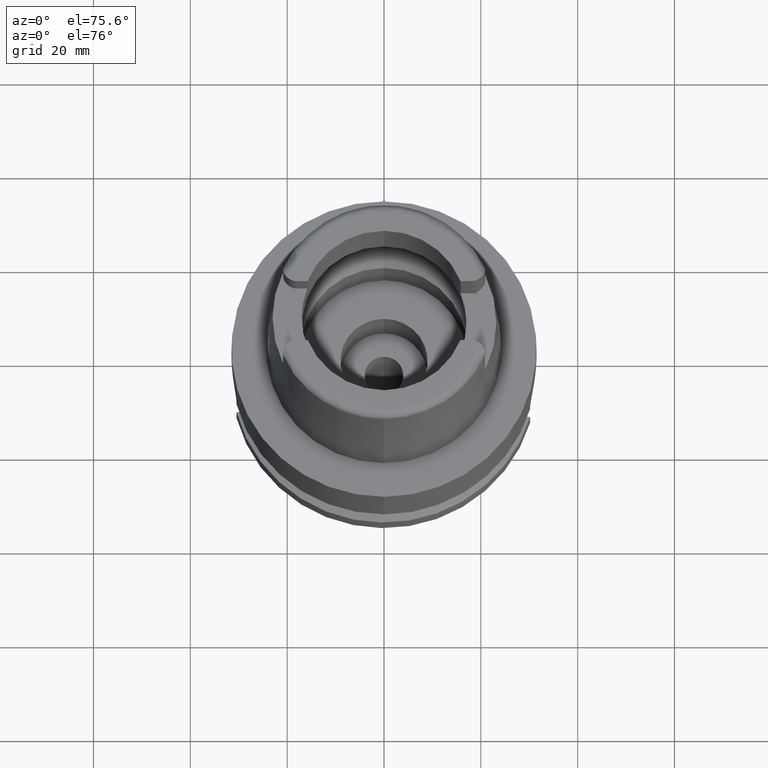
[diagram: clean part render]
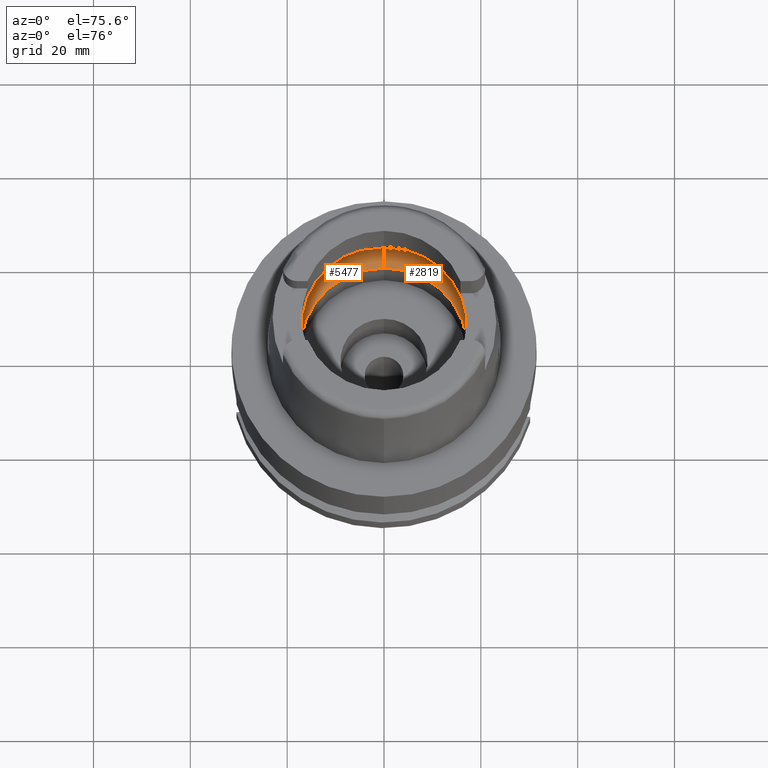
[diagram: same view with one multi-face feature highlighted, each face labeled with its STEP entity id]
A machine part, auxiliary view. The highlighted faces form ONE feature: a constant-radius fillet chain: 2 tangent blend faces with common blend radius 8 mm. The faces share edges in the B-rep.
Their STEP definitions:
[1] entity #5477 (Torus):
#79 = CARTESIAN_POINT ( 'NONE',  ( -19.84575864665999845, 2.479085262489999941, 6.186348233825000875 ) ) ;
#109 = TOROIDAL_SURFACE ( 'NONE', #1642, 12.00000000000000000, 8.000000000000000000 ) ;
#124 = DIRECTION ( 'NONE',  ( 0.0000000000000000000, 0.0000000000000000000, 1.000000000000000000 ) ) ;
#199 = CARTESIAN_POINT ( 'NONE',  ( 0.0000000000000000000, -17.25000000000000000, 0.1500000000000999700 ) ) ;
#255 = CARTESIAN_POINT ( 'NONE',  ( -19.92208494194046509, -1.430041077684033990, 5.533135808937241329 ) ) ;
#269 = CARTESIAN_POINT ( 'NONE',  ( -19.84575864665999845, -2.479085262491000030, 6.186348233825000875 ) ) ;
#373 = CARTESIAN_POINT ( 'NONE',  ( -19.84575864665999845, 2.479085262489999941, 6.186348233825000875 ) ) ;
#375 = DIRECTION ( 'NONE',  ( 0.0000000000000000000, 0.0000000000000000000, 1.000000000000000000 ) ) ;
#425 = CARTESIAN_POINT ( 'NONE',  ( 0.0000000000000000000, 0.0000000000000000000, 6.186348233825000875 ) ) ;
#637 = DIRECTION ( 'NONE',  ( 1.000000000000000000, 0.0000000000000000000, 0.0000000000000000000 ) ) ;
#639 = CARTESIAN_POINT ( 'NONE',  ( -19.92547007504345302, -1.335031240339097369, 5.495683724100088874 ) ) ;
#723 = EDGE_LOOP ( 'NONE', ( #1511, #734, #5533, #2850, #3343, #3562, #4191 ) ) ;
#729 = CARTESIAN_POINT ( 'NONE',  ( -19.92517785718085577, -1.343613127942956842, 5.498962406970089312 ) ) ;
#734 = ORIENTED_EDGE ( 'NONE', *, *, #1108, .F. ) ;
#760 = CARTESIAN_POINT ( 'NONE',  ( -19.84575864665999845, -2.479085262491000030, 6.186348233825000875 ) ) ;
#786 = DIRECTION ( 'NONE',  ( -1.000000000000000000, 0.0000000000000000000, 0.0000000000000000000 ) ) ;
#982 = VERTEX_POINT ( 'NONE', #199 ) ;
#1011 = AXIS2_PLACEMENT_3D ( 'NONE', #2968, #375, #5552 ) ;
#1063 = CARTESIAN_POINT ( 'NONE',  ( -19.93655184384261858, 0.9261166967963114782, 5.364558725656097593 ) ) ;
#1067 = DIRECTION ( 'NONE',  ( 0.0000000000000000000, 1.000000000000000000, 0.0000000000000000000 ) ) ;
#1089 = EDGE_CURVE ( 'NONE', #5266, #2336, #1790, .T. ) ;
#1108 = EDGE_CURVE ( 'NONE', #982, #1769, #4692, .T. ) ;
#1138 = DIRECTION ( 'NONE',  ( -0.9922879323327794543, 0.1239542631244973381, 0.0000000000000000000 ) ) ;
#1150 = CARTESIAN_POINT ( 'NONE',  ( -19.92840422587602944, 1.244362650384072122, 5.462311864171463860 ) ) ;
#1187 = AXIS2_PLACEMENT_3D ( 'NONE', #2457, #637, #4203 ) ;
#1417 = AXIS2_PLACEMENT_3D ( 'NONE', #5397, #3255, #1138 ) ;
#1511 = ORIENTED_EDGE ( 'NONE', *, *, #3593, .F. ) ;
#1557 = CARTESIAN_POINT ( 'NONE',  ( -19.94501428475999916, 0.0000000000000000000, 5.250000000000000000 ) ) ;
#1642 = AXIS2_PLACEMENT_3D ( 'NONE', #4837, #124, #1067 ) ;
#1669 = CARTESIAN_POINT ( 'NONE',  ( 0.0000000000000000000, 20.00000000000000000, 6.186348233825000875 ) ) ;
#1676 = VERTEX_POINT ( 'NONE', #269 ) ;
#1724 = CARTESIAN_POINT ( 'NONE',  ( -19.92607296192538513, 1.317057065037986030, 5.488888788417265907 ) ) ;
#1769 = VERTEX_POINT ( 'NONE', #5538 ) ;
#1790 = B_SPLINE_CURVE_WITH_KNOTS ( 'NONE', 3,
 ( #1557, #4910, #3272, #4992, #1063, #2763, #3299, #1150, #3382, #2937, #1724, #2965, #5049, #5463, #373 ),
 .UNSPECIFIED., .F., .F.,
 ( 4, 2, 2, 1, 1, 1, 2, 2, 4 ),
 ( 0.0000000000000000000, 0.2499999999999956146, 0.3749999999999934497, 0.4374999999999923395, 0.4687499999999917288, 0.4843749999999914513, 0.4921874999999914513, 0.4999999999999915623, 1.000000000000000000 ),
 .UNSPECIFIED. ) ;
#1840 = FACE_OUTER_BOUND ( 'NONE', #723, .T. ) ;
#1952 = CIRCLE ( 'NONE', #1417, 20.00000000000001421 ) ;
#2108 = B_SPLINE_CURVE_WITH_KNOTS ( 'NONE', 3,
 ( #760, #5353, #2371, #2849, #2767, #3622, #4594, #255, #4568, #4942, #729, #639, #2430, #2883, #4513 ),
 .UNSPECIFIED., .F., .F.,
 ( 4, 2, 2, 1, 1, 1, 2, 2, 4 ),
 ( 0.0000000000000000000, 0.2500000000000051070, 0.3750000000000077716, 0.4375000000000091038, 0.4687500000000098255, 0.4843750000000101030, 0.4921875000000099920, 0.5000000000000098810, 1.000000000000000000 ),
 .UNSPECIFIED. ) ;
#2336 = VERTEX_POINT ( 'NONE', #79 ) ;
#2339 = CIRCLE ( 'NONE', #1011, 17.25000000000000000 ) ;
#2371 = CARTESIAN_POINT ( 'NONE',  ( -19.88058961472209774, -2.158414018199903417, 5.925204145833316893 ) ) ;
#2426 = CIRCLE ( 'NONE', #1187, 7.999999999999992895 ) ;
#2430 = CARTESIAN_POINT ( 'NONE',  ( -19.93856671042052398, -0.9459665778997381480, 5.348222674928019060 ) ) ;
#2457 = CARTESIAN_POINT ( 'NONE',  ( 0.0000000000000000000, 12.00000000000000000, 6.186348233825000875 ) ) ;
#2533 = CARTESIAN_POINT ( 'NONE',  ( 0.0000000000000000000, -12.00000000000000000, 6.186348233825000875 ) ) ;
#2621 = CARTESIAN_POINT ( 'NONE',  ( 0.0000000000000000000, 17.25000000000000000, 0.1500000000000999700 ) ) ;
#2763 = CARTESIAN_POINT ( 'NONE',  ( -19.93292508344945801, 1.081630659659294169, 5.408972087979956989 ) ) ;
#2767 = CARTESIAN_POINT ( 'NONE',  ( -19.90654447560747542, -1.770008974173177263, 5.691881888190377659 ) ) ;
#2774 = CARTESIAN_POINT ( 'NONE',  ( -19.94501428475999916, 0.0000000000000000000, 5.250000000000000000 ) ) ;
#2849 = CARTESIAN_POINT ( 'NONE',  ( -19.90056784349247820, -1.871074272730828048, 5.748194928871746434 ) ) ;
#2850 = ORIENTED_EDGE ( 'NONE', *, *, #3492, .T. ) ;
#2883 = CARTESIAN_POINT ( 'NONE',  ( -19.94501428475999560, -0.4960423020627297008, 5.249999999999995559 ) ) ;
#2932 = EDGE_CURVE ( 'NONE', #2336, #3541, #1952, .T. ) ;
#2937 = CARTESIAN_POINT ( 'NONE',  ( -19.92646963884338263, 1.305022040076338818, 5.484397814373272340 ) ) ;
#2965 = CARTESIAN_POINT ( 'NONE',  ( -19.92591704426989452, 1.321751840890049490, 5.490650643677390974 ) ) ;
#2968 = CARTESIAN_POINT ( 'NONE',  ( 0.0000000000000000000, 0.0000000000000000000, 0.1500000000000999700 ) ) ;
#3255 = DIRECTION ( 'NONE',  ( 0.0000000000000000000, 0.0000000000000000000, -1.000000000000000000 ) ) ;
#3272 = CARTESIAN_POINT ( 'NONE',  ( -19.94340239125193293, 0.4850157974226460000, 5.274610163457148282 ) ) ;
#3299 = CARTESIAN_POINT ( 'NONE',  ( -19.93096058823649130, 1.157935579649966629, 5.432577573767241041 ) ) ;
#3343 = ORIENTED_EDGE ( 'NONE', *, *, #2932, .F. ) ;
#3382 = CARTESIAN_POINT ( 'NONE',  ( -19.92705993187612989, 1.286922590644232978, 5.477696685208107930 ) ) ;
#3492 = EDGE_CURVE ( 'NONE', #3778, #3541, #2426, .T. ) ;
#3541 = VERTEX_POINT ( 'NONE', #1669 ) ;
#3562 = ORIENTED_EDGE ( 'NONE', *, *, #1089, .F. ) ;
#3593 = EDGE_CURVE ( 'NONE', #1769, #1676, #4070, .T. ) ;
#3622 = CARTESIAN_POINT ( 'NONE',  ( -19.91448525756728927, -1.610510976265786987, 5.612925495665686881 ) ) ;
#3668 = EDGE_CURVE ( 'NONE', #3778, #982, #2339, .T. ) ;
#3778 = VERTEX_POINT ( 'NONE', #2621 ) ;
#3976 = AXIS2_PLACEMENT_3D ( 'NONE', #425, #5086, #4287 ) ;
#4070 = CIRCLE ( 'NONE', #3976, 20.00000000000000000 ) ;
#4191 = ORIENTED_EDGE ( 'NONE', *, *, #4555, .F. ) ;
#4203 = DIRECTION ( 'NONE',  ( 0.0000000000000000000, 0.6562500000000006661, -0.7545435292281016393 ) ) ;
#4230 = DIRECTION ( 'NONE',  ( 0.0000000000000000000, -0.6562500000000006661, -0.7545435292281016393 ) ) ;
#4287 = DIRECTION ( 'NONE',  ( 0.0000000000000000000, -1.000000000000000000, 0.0000000000000000000 ) ) ;
#4513 = CARTESIAN_POINT ( 'NONE',  ( -19.94501428475999916, 0.0000000000000000000, 5.250000000000000000 ) ) ;
#4555 = EDGE_CURVE ( 'NONE', #1676, #5266, #2108, .T. ) ;
#4568 = CARTESIAN_POINT ( 'NONE',  ( -19.92391559123418787, -1.379822842001579009, 5.513022806674898746 ) ) ;
#4594 = CARTESIAN_POINT ( 'NONE',  ( -19.91819960699401193, -1.528790138807751164, 5.574827418276589341 ) ) ;
#4692 = CIRCLE ( 'NONE', #5303, 7.999999999999992895 ) ;
#4837 = CARTESIAN_POINT ( 'NONE',  ( 0.0000000000000000000, 0.0000000000000000000, 6.186348233825000875 ) ) ;
#4910 = CARTESIAN_POINT ( 'NONE',  ( -19.94501428476000271, 0.2480002814738951344, 5.249999999999999112 ) ) ;
#4942 = CARTESIAN_POINT ( 'NONE',  ( -19.92467615132159864, -1.358120919786871328, 5.504564686247708671 ) ) ;
#4992 = CARTESIAN_POINT ( 'NONE',  ( -19.93856671072771292, 0.8185607198028845843, 5.338678409714962214 ) ) ;
#5049 = CARTESIAN_POINT ( 'NONE',  ( -19.90996073982917380, 1.795817278995830657, 5.670328124222732136 ) ) ;
#5086 = DIRECTION ( 'NONE',  ( 0.0000000000000000000, 0.0000000000000000000, -1.000000000000000000 ) ) ;
#5266 = VERTEX_POINT ( 'NONE', #2774 ) ;
#5303 = AXIS2_PLACEMENT_3D ( 'NONE', #2533, #786, #4230 ) ;
#5353 = CARTESIAN_POINT ( 'NONE',  ( -19.86453968564131500, -2.328737885376345407, 6.053878405347992597 ) ) ;
#5397 = CARTESIAN_POINT ( 'NONE',  ( 0.0000000000000000000, 0.0000000000000000000, 6.186348233825000875 ) ) ;
#5463 = CARTESIAN_POINT ( 'NONE',  ( -19.88332310116147283, 2.178371483505385786, 5.921391814315846602 ) ) ;
#5477 = ADVANCED_FACE ( 'NONE', ( #1840 ), #109, .F. ) ;
#5533 = ORIENTED_EDGE ( 'NONE', *, *, #3668, .F. ) ;
#5538 = CARTESIAN_POINT ( 'NONE',  ( 0.0000000000000000000, -20.00000000000000000, 6.186348233825000875 ) ) ;
#5552 = DIRECTION ( 'NONE',  ( 0.0000000000000000000, 1.000000000000000000, 0.0000000000000000000 ) ) ;
[2] entity #2819 (Torus):
#55 = CARTESIAN_POINT ( 'NONE',  ( 19.92517798419735797, 1.343609062691558220, 5.498960846759620935 ) ) ;
#120 = CARTESIAN_POINT ( 'NONE',  ( 19.84575864665999845, -2.479085262491000030, 6.186348233825000875 ) ) ;
#199 = CARTESIAN_POINT ( 'NONE',  ( 0.0000000000000000000, -17.25000000000000000, 0.1500000000000999700 ) ) ;
#218 = CARTESIAN_POINT ( 'NONE',  ( 0.0000000000000000000, 0.0000000000000000000, 6.186348233825000875 ) ) ;
#277 = DIRECTION ( 'NONE',  ( 0.9922879323327794543, -0.1239542631244973381, 0.0000000000000000000 ) ) ;
#548 = CARTESIAN_POINT ( 'NONE',  ( 19.90996060949646207, -1.795819319521763990, 5.670329520825307057 ) ) ;
#564 = AXIS2_PLACEMENT_3D ( 'NONE', #5189, #2222, #976 ) ;
#568 = CARTESIAN_POINT ( 'NONE',  ( 19.90654459260026954, 1.770006697071616619, 5.691880654305785825 ) ) ;
#620 = CARTESIAN_POINT ( 'NONE',  ( 19.84575864665999845, -2.479085262491000030, 6.186348233825000875 ) ) ;
#637 = DIRECTION ( 'NONE',  ( 1.000000000000000000, 0.0000000000000000000, 0.0000000000000000000 ) ) ;
#685 = B_SPLINE_CURVE_WITH_KNOTS ( 'NONE', 3,
 ( #3592, #2233, #5299, #4864, #3966, #5243, #2687, #2733, #2633, #4380, #4432, #4055, #548, #3997, #120 ),
 .UNSPECIFIED., .F., .F.,
 ( 4, 2, 2, 1, 1, 1, 2, 2, 4 ),
 ( 0.0000000000000000000, 0.2499999999999987788, 0.3749999999999982792, 0.4374999999999980571, 0.4687499999999978906, 0.4843749999999975020, 0.4921874999999975575, 0.4999999999999975575, 1.000000000000000000 ),
 .UNSPECIFIED. ) ;
#786 = DIRECTION ( 'NONE',  ( -1.000000000000000000, 0.0000000000000000000, 0.0000000000000000000 ) ) ;
#822 = CARTESIAN_POINT ( 'NONE',  ( 19.94501428475999916, 0.0000000000000000000, 5.250000000000000000 ) ) ;
#911 = ORIENTED_EDGE ( 'NONE', *, *, #3736, .F. ) ;
#961 = DIRECTION ( 'NONE',  ( 0.0000000000000000000, 1.000000000000000000, 0.0000000000000000000 ) ) ;
#976 = DIRECTION ( 'NONE',  ( 0.0000000000000000000, -1.000000000000000000, 0.0000000000000000000 ) ) ;
#982 = VERTEX_POINT ( 'NONE', #199 ) ;
#1108 = EDGE_CURVE ( 'NONE', #982, #1769, #4692, .T. ) ;
#1117 = EDGE_LOOP ( 'NONE', ( #911, #2757, #2413, #4106, #3878, #3741, #2225 ) ) ;
#1187 = AXIS2_PLACEMENT_3D ( 'NONE', #2457, #637, #4203 ) ;
#1261 = AXIS2_PLACEMENT_3D ( 'NONE', #3148, #1463, #5310 ) ;
#1367 = CARTESIAN_POINT ( 'NONE',  ( 19.92467627844356315, 1.358116918539516105, 5.504563131531952536 ) ) ;
#1463 = DIRECTION ( 'NONE',  ( 0.0000000000000000000, 0.0000000000000000000, 1.000000000000000000 ) ) ;
#1550 = CIRCLE ( 'NONE', #564, 17.25000000000000000 ) ;
#1587 = VERTEX_POINT ( 'NONE', #620 ) ;
#1669 = CARTESIAN_POINT ( 'NONE',  ( 0.0000000000000000000, 20.00000000000000000, 6.186348233825000875 ) ) ;
#1769 = VERTEX_POINT ( 'NONE', #5538 ) ;
#1830 = CARTESIAN_POINT ( 'NONE',  ( 19.93856675271270262, 0.9459631445366571967, 5.348221889602998047 ) ) ;
#1989 = B_SPLINE_CURVE_WITH_KNOTS ( 'NONE', 3,
 ( #2221, #3987, #5214, #3126, #568, #3934, #4016, #3477, #4452, #1367, #55, #2200, #1830, #3559, #2703 ),
 .UNSPECIFIED., .F., .F.,
 ( 4, 2, 2, 1, 1, 1, 2, 2, 4 ),
 ( 0.0000000000000000000, 0.2499999999999974465, 0.3749999999999963918, 0.4374999999999956701, 0.4687499999999954481, 0.4843749999999952816, 0.4921874999999951705, 0.4999999999999951150, 1.000000000000000000 ),
 .UNSPECIFIED. ) ;
#2200 = CARTESIAN_POINT ( 'NONE',  ( 19.92547020324161622, 1.335027099705168530, 5.495682146681664548 ) ) ;
#2221 = CARTESIAN_POINT ( 'NONE',  ( 19.84575864665999845, 2.479085262491000030, 6.186348233825000875 ) ) ;
#2222 = DIRECTION ( 'NONE',  ( 0.0000000000000000000, 0.0000000000000000000, 1.000000000000000000 ) ) ;
#2225 = ORIENTED_EDGE ( 'NONE', *, *, #3229, .F. ) ;
#2233 = CARTESIAN_POINT ( 'NONE',  ( 19.94501428476000271, -0.2480012822880987844, 5.249999999999999112 ) ) ;
#2413 = ORIENTED_EDGE ( 'NONE', *, *, #3492, .F. ) ;
#2420 = DIRECTION ( 'NONE',  ( 0.0000000000000000000, 0.0000000000000000000, -1.000000000000000000 ) ) ;
#2426 = CIRCLE ( 'NONE', #1187, 7.999999999999992895 ) ;
#2457 = CARTESIAN_POINT ( 'NONE',  ( 0.0000000000000000000, 12.00000000000000000, 6.186348233825000875 ) ) ;
#2513 = EDGE_CURVE ( 'NONE', #1587, #1769, #4144, .T. ) ;
#2533 = CARTESIAN_POINT ( 'NONE',  ( 0.0000000000000000000, -12.00000000000000000, 6.186348233825000875 ) ) ;
#2621 = CARTESIAN_POINT ( 'NONE',  ( 0.0000000000000000000, 17.25000000000000000, 0.1500000000000999700 ) ) ;
#2633 = CARTESIAN_POINT ( 'NONE',  ( 19.92705981527248937, -1.286926606873724177, 5.477698152406411225 ) ) ;
#2634 = VERTEX_POINT ( 'NONE', #3317 ) ;
#2687 = CARTESIAN_POINT ( 'NONE',  ( 19.93096049696546856, -1.157939335591919860, 5.432578789541300246 ) ) ;
#2703 = CARTESIAN_POINT ( 'NONE',  ( 19.94501428475999916, 0.0000000000000000000, 5.250000000000000000 ) ) ;
#2733 = CARTESIAN_POINT ( 'NONE',  ( 19.92840411800285594, -1.244366584479167814, 5.462313247185328180 ) ) ;
#2757 = ORIENTED_EDGE ( 'NONE', *, *, #4427, .F. ) ;
#2819 = ADVANCED_FACE ( 'NONE', ( #3224 ), #3678, .F. ) ;
#3041 = AXIS2_PLACEMENT_3D ( 'NONE', #218, #2420, #277 ) ;
#3126 = CARTESIAN_POINT ( 'NONE',  ( 19.90056795285844515, 1.871072381426653441, 5.748193827892328578 ) ) ;
#3138 = CARTESIAN_POINT ( 'NONE',  ( 0.0000000000000000000, 0.0000000000000000000, 6.186348233825000875 ) ) ;
#3148 = CARTESIAN_POINT ( 'NONE',  ( 0.0000000000000000000, 0.0000000000000000000, 6.186348233825000875 ) ) ;
#3224 = FACE_OUTER_BOUND ( 'NONE', #1117, .T. ) ;
#3229 = EDGE_CURVE ( 'NONE', #4335, #1587, #685, .T. ) ;
#3317 = CARTESIAN_POINT ( 'NONE',  ( 19.84575864665999845, 2.479085262491000030, 6.186348233825000875 ) ) ;
#3477 = CARTESIAN_POINT ( 'NONE',  ( 19.92208506923287814, 1.430037391292425797, 5.533134286467845442 ) ) ;
#3492 = EDGE_CURVE ( 'NONE', #3778, #3541, #2426, .T. ) ;
#3519 = DIRECTION ( 'NONE',  ( 0.0000000000000000000, 0.0000000000000000000, -1.000000000000000000 ) ) ;
#3541 = VERTEX_POINT ( 'NONE', #1669 ) ;
#3559 = CARTESIAN_POINT ( 'NONE',  ( 19.94501428475999560, 0.4960402853743068885, 5.250000000000000888 ) ) ;
#3592 = CARTESIAN_POINT ( 'NONE',  ( 19.94501428475999916, 0.0000000000000000000, 5.250000000000000000 ) ) ;
#3678 = TOROIDAL_SURFACE ( 'NONE', #1261, 12.00000000000000000, 8.000000000000000000 ) ;
#3736 = EDGE_CURVE ( 'NONE', #2634, #4335, #1989, .T. ) ;
#3741 = ORIENTED_EDGE ( 'NONE', *, *, #2513, .F. ) ;
#3778 = VERTEX_POINT ( 'NONE', #2621 ) ;
#3878 = ORIENTED_EDGE ( 'NONE', *, *, #1108, .T. ) ;
#3934 = CARTESIAN_POINT ( 'NONE',  ( 19.91448538158097392, 1.610508053761900316, 5.612924102263618487 ) ) ;
#3966 = CARTESIAN_POINT ( 'NONE',  ( 19.93655178888372248, -0.9261198900591437466, 5.364559530321087344 ) ) ;
#3987 = CARTESIAN_POINT ( 'NONE',  ( 19.86453973035716913, 2.328737527430568832, 6.053878089964933373 ) ) ;
#3997 = CARTESIAN_POINT ( 'NONE',  ( 19.88332301270218849, -2.178372191595286722, 5.921392438207989883 ) ) ;
#4000 = CIRCLE ( 'NONE', #4891, 20.00000000000000000 ) ;
#4016 = CARTESIAN_POINT ( 'NONE',  ( 19.91819973341333494, 1.528786876978563081, 5.574825955112490128 ) ) ;
#4055 = CARTESIAN_POINT ( 'NONE',  ( 19.92591691872320681, -1.321755966737424792, 5.490652197696729075 ) ) ;
#4106 = ORIENTED_EDGE ( 'NONE', *, *, #4999, .F. ) ;
#4144 = CIRCLE ( 'NONE', #3041, 20.00000000000001421 ) ;
#4203 = DIRECTION ( 'NONE',  ( 0.0000000000000000000, 0.6562500000000006661, -0.7545435292281016393 ) ) ;
#4230 = DIRECTION ( 'NONE',  ( 0.0000000000000000000, -0.6562500000000006661, -0.7545435292281016393 ) ) ;
#4335 = VERTEX_POINT ( 'NONE', #822 ) ;
#4380 = CARTESIAN_POINT ( 'NONE',  ( 19.92646951840612246, -1.305026090026948804, 5.484399317726082579 ) ) ;
#4427 = EDGE_CURVE ( 'NONE', #3541, #2634, #4000, .T. ) ;
#4432 = CARTESIAN_POINT ( 'NONE',  ( 19.92607283891191727, -1.317061137141596561, 5.488890315884850324 ) ) ;
#4452 = CARTESIAN_POINT ( 'NONE',  ( 19.92391571847980103, 1.379818936262085627, 5.513021260670413426 ) ) ;
#4692 = CIRCLE ( 'NONE', #5303, 7.999999999999992895 ) ;
#4864 = CARTESIAN_POINT ( 'NONE',  ( 19.93856666885426776, -0.8185636124059638696, 5.338679045133562617 ) ) ;
#4891 = AXIS2_PLACEMENT_3D ( 'NONE', #3138, #3519, #961 ) ;
#4999 = EDGE_CURVE ( 'NONE', #982, #3778, #1550, .T. ) ;
#5189 = CARTESIAN_POINT ( 'NONE',  ( 0.0000000000000000000, 0.0000000000000000000, 0.1500000000000999700 ) ) ;
#5214 = CARTESIAN_POINT ( 'NONE',  ( 19.88058969236893248, 2.158413152841909710, 5.925203484518101860 ) ) ;
#5243 = CARTESIAN_POINT ( 'NONE',  ( 19.93292500493674524, -1.081634238850528451, 5.408973163817647034 ) ) ;
#5299 = CARTESIAN_POINT ( 'NONE',  ( 19.94340238078356720, -0.4850176595367738930, 5.274610361541468784 ) ) ;
#5303 = AXIS2_PLACEMENT_3D ( 'NONE', #2533, #786, #4230 ) ;
#5310 = DIRECTION ( 'NONE',  ( 0.0000000000000000000, 1.000000000000000000, 0.0000000000000000000 ) ) ;
#5538 = CARTESIAN_POINT ( 'NONE',  ( 0.0000000000000000000, -20.00000000000000000, 6.186348233825000875 ) ) ;